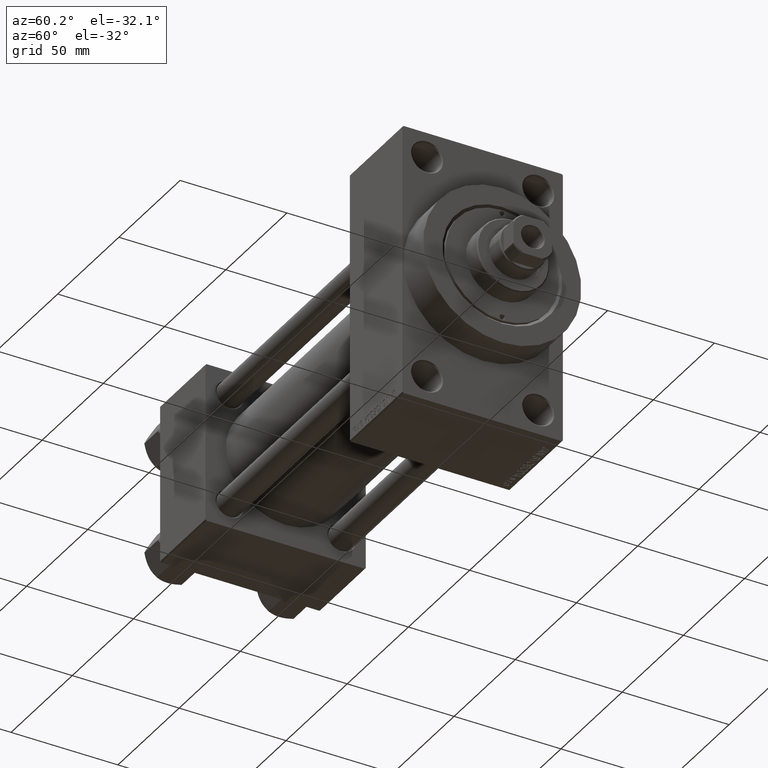
[diagram: clean part render]
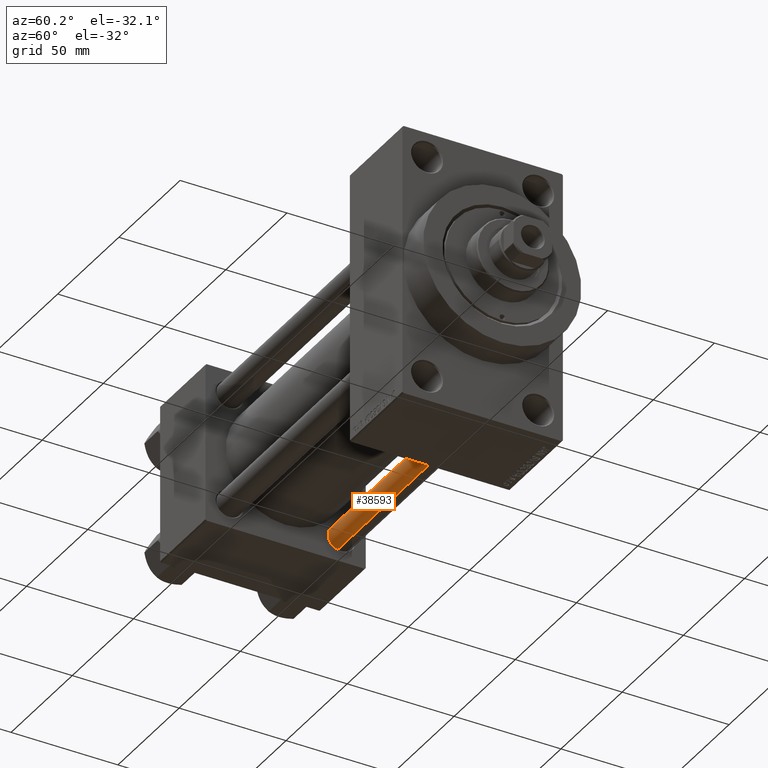
[diagram: same view with one face highlighted and labeled with its STEP entity id]
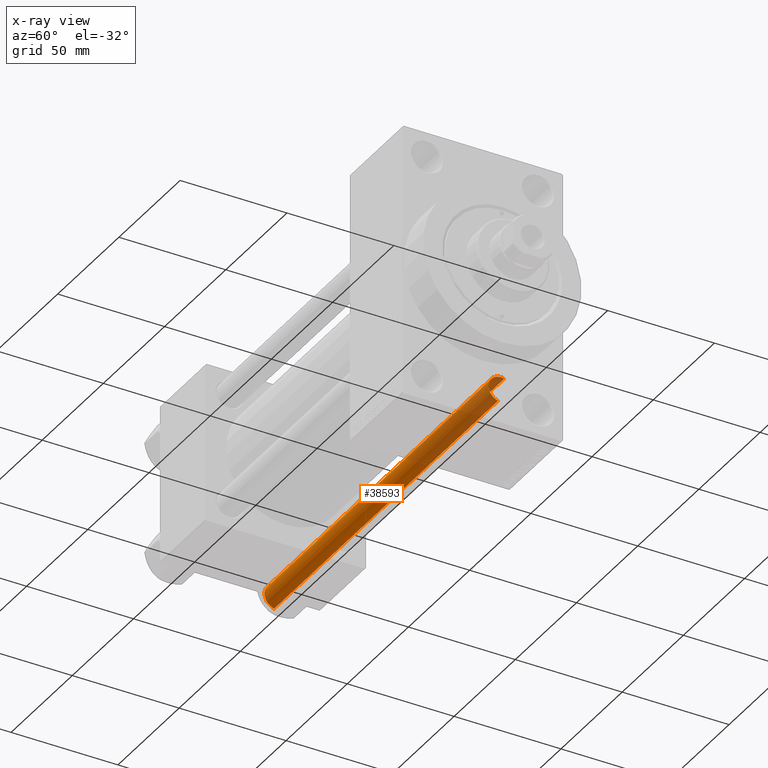
[diagram: x-ray of the same camera — body ghosted, the highlighted face saturated]
A machine part, auxiliary view. The second image highlights one B-rep face of the part: STEP entity #38593.
The next image is the same camera in x-ray: the body ghosted, the highlighted face saturated — about 35% of this face is hidden behind the body in this view.
In plain terms, the highlighted cylindrical surface (edge-blend (fillet) strip) has radius 6 mm, axis along (1, -0, 0).
Its self-contained STEP definition (entity closure, byte-faithful):
#20 = CARTESIAN_POINT ( 'NONE',  ( -6.000000000000000888, 0.000000000000000000, 184.0000000000000000 ) ) ;
#34 = EDGE_CURVE ( 'NONE', #25704, #29333, #13404, .T. ) ;
#1872 = CYLINDRICAL_SURFACE ( 'NONE', #43944, 6.000000000000000888 ) ;
#2755 = CARTESIAN_POINT ( 'NONE',  ( 0.000000000000000000, 0.000000000000000000, 0.5000000000000004441 ) ) ;
#4147 = CIRCLE ( 'NONE', #10571, 6.000000000000000888 ) ;
#7247 = DIRECTION ( 'NONE',  ( 1.000000000000000000, 0.000000000000000000, 0.000000000000000000 ) ) ;
#10571 = AXIS2_PLACEMENT_3D ( 'NONE', #2755, #45287, #7247 ) ;
#13404 = LINE ( 'NONE', #36151, #39356 ) ;
#13750 = ORIENTED_EDGE ( 'NONE', *, *, #17799, .T. ) ;
#13823 = ORIENTED_EDGE ( 'NONE', *, *, #31691, .T. ) ;
#14942 = CARTESIAN_POINT ( 'NONE',  ( -6.000000000000000888, 0.000000000000000000, 183.5000000000000000 ) ) ;
#17799 = EDGE_CURVE ( 'NONE', #46546, #29333, #4147, .T. ) ;
#18860 = DIRECTION ( 'NONE',  ( 0.000000000000000000, 0.000000000000000000, -1.000000000000000000 ) ) ;
#21144 = CARTESIAN_POINT ( 'NONE',  ( 0.000000000000000000, 0.000000000000000000, 184.0000000000000000 ) ) ;
#21400 = DIRECTION ( 'NONE',  ( -0.000000000000000000, -0.000000000000000000, -1.000000000000000000 ) ) ;
#21818 = ORIENTED_EDGE ( 'NONE', *, *, #34, .F. ) ;
#24168 = DIRECTION ( 'NONE',  ( -1.000000000000000000, 0.000000000000000000, 0.000000000000000000 ) ) ;
#25472 = AXIS2_PLACEMENT_3D ( 'NONE', #33852, #18860, #38325 ) ;
#25704 = VERTEX_POINT ( 'NONE', #35240 ) ;
#25885 = VERTEX_POINT ( 'NONE', #14942 ) ;
#27302 = LINE ( 'NONE', #20, #33315 ) ;
#29333 = VERTEX_POINT ( 'NONE', #30821 ) ;
#30821 = CARTESIAN_POINT ( 'NONE',  ( 6.000000000000000888, 7.347880794884120722E-16, 0.5000000000000004441 ) ) ;
#31691 = EDGE_CURVE ( 'NONE', #25885, #46546, #27302, .T. ) ;
#33315 = VECTOR ( 'NONE', #45809, 1000.000000000000000 ) ;
#33852 = CARTESIAN_POINT ( 'NONE',  ( 0.000000000000000000, 0.000000000000000000, 183.5000000000000000 ) ) ;
#35093 = EDGE_CURVE ( 'NONE', #25704, #25885, #42232, .T. ) ;
#35240 = CARTESIAN_POINT ( 'NONE',  ( 6.000000000000000888, 7.347880794884120722E-16, 183.5000000000000000 ) ) ;
#36151 = CARTESIAN_POINT ( 'NONE',  ( 6.000000000000000888, 7.347880794884120722E-16, 184.0000000000000000 ) ) ;
#38325 = DIRECTION ( 'NONE',  ( 1.000000000000000000, 0.000000000000000000, 0.000000000000000000 ) ) ;
#38593 = ADVANCED_FACE ( 'NONE', ( #47165 ), #1872, .T. ) ;
#39356 = VECTOR ( 'NONE', #21400, 1000.000000000000000 ) ;
#42232 = CIRCLE ( 'NONE', #25472, 6.000000000000000888 ) ;
#43260 = ORIENTED_EDGE ( 'NONE', *, *, #35093, .T. ) ;
#43927 = CARTESIAN_POINT ( 'NONE',  ( -6.000000000000000888, 0.000000000000000000, 0.5000000000000004441 ) ) ;
#43944 = AXIS2_PLACEMENT_3D ( 'NONE', #21144, #44137, #24168 ) ;
#44137 = DIRECTION ( 'NONE',  ( -0.000000000000000000, -0.000000000000000000, -1.000000000000000000 ) ) ;
#45287 = DIRECTION ( 'NONE',  ( -0.000000000000000000, -0.000000000000000000, 1.000000000000000000 ) ) ;
#45495 = EDGE_LOOP ( 'NONE', ( #21818, #43260, #13823, #13750 ) ) ;
#45809 = DIRECTION ( 'NONE',  ( -0.000000000000000000, -0.000000000000000000, -1.000000000000000000 ) ) ;
#46546 = VERTEX_POINT ( 'NONE', #43927 ) ;
#47165 = FACE_OUTER_BOUND ( 'NONE', #45495, .T. ) ;